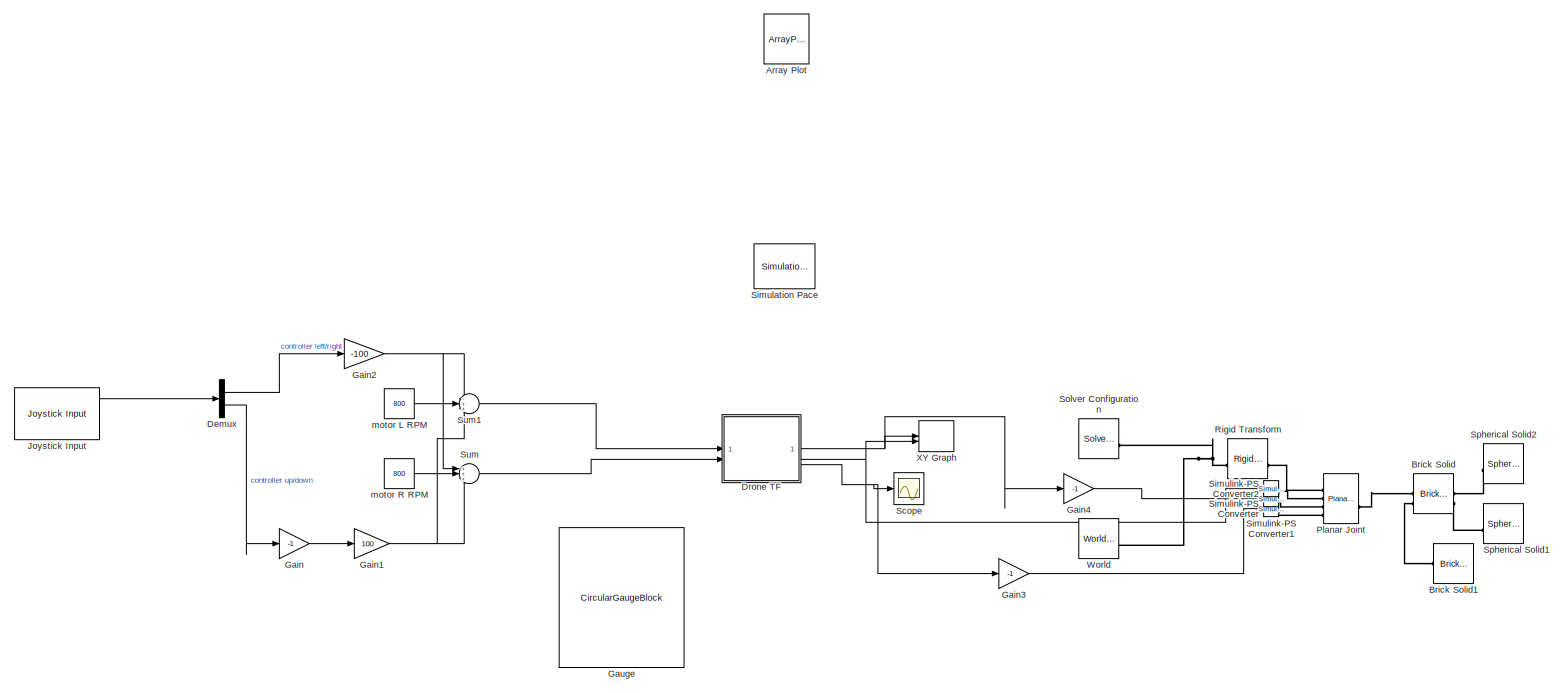
[diagram: root canvas - part 1/1, most of the canvas]
MODEL slx_05ce6a89388a
KIND model
CONFIG AbsTol = auto
CONFIG EnableMultiTasking = off
CONFIG FixedStep = 0.05
CONFIG MaxStep = auto
CONFIG MinStep = auto
CONFIG RelTol = 1e-3
CONFIG SampleTimeConstraint = Unconstrained
CONFIG SolverName = FixedStepAuto
CONFIG StartTime = 0.0
CONFIG StopTime = 100
BLOCK [ArrayPlot] Array Plot
  DefaultConfigurationName = dsp.scopes.ArrayPlotBlockSpecification
  GraphicalSettings = {"Style":{"BackgroundColor":[0.12941176470588237,0.12941176470588237,0.12941176470588237],"AxesColor":[0.07058823529411765,0.07058823529411765,0.07058823529411765],"LabelsColor":[0.8509803921568627,0.8509803921568627,0.8509803921568627],"PreserveColors":false,"Visible":[true],"LineStyle":["-"],"LineWidth":[1.5],"BarWidth":[0.9],"LineColor":[[1,0.9098039215686274,0.39215686274509803]],"LineFaceAlph...<+604ch>
  IOType = viewer
  IsFloating = on
  ScopeFrameLocation = window
  WasSavedAsWebScope = on
  WindowPosition = [560.000000,290.000000,800.000000,500.000000,]
BLOCK [Reference] Brick Solid  REF=sm_lib/Body Elements/Brick Solid
  NameLocation = top
  SourceBlock = sm_lib/Body Elements/Brick Solid
  SourceType = Brick Solid
BLOCK [Reference] Brick Solid1  REF=sm_lib/Body Elements/Brick Solid
  NameLocation = top
  SourceBlock = sm_lib/Body Elements/Brick Solid
  SourceType = Brick Solid
BLOCK [Demux] Demux
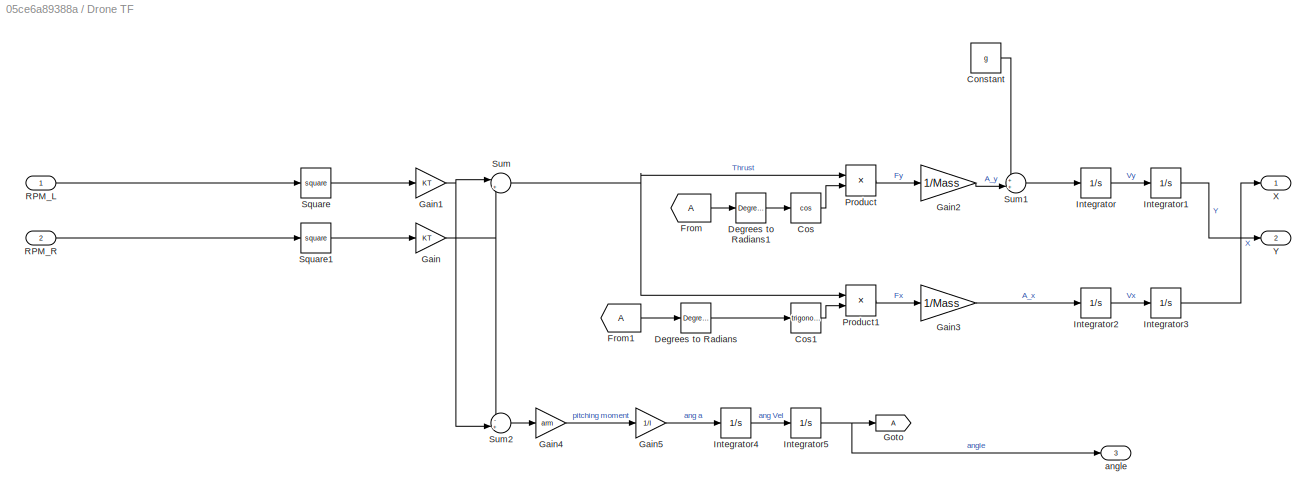
BLOCK [SubSystem] Drone TF
BLOCK [Constant] Drone TF/Constant
  Value = g
BLOCK [Trigonometry] Drone TF/Cos
  Operator = cos
BLOCK [Trigonometry] Drone TF/Cos1
BLOCK [Reference] Drone TF/Degrees to Radians  REF=simulink_extras/Transformations/Degrees to
Radians
  SourceBlock = simulink_extras/Transformations/Degrees to\nRadians
  SourceType = DegreesToRadians
BLOCK [Reference] Drone TF/Degrees to Radians1  REF=simulink_extras/Transformations/Degrees to
Radians
  SourceBlock = simulink_extras/Transformations/Degrees to\nRadians
  SourceType = DegreesToRadians
BLOCK [From] Drone TF/From
BLOCK [From] Drone TF/From1
BLOCK [Gain] Drone TF/Gain
  Gain = KT
BLOCK [Gain] Drone TF/Gain1
  Gain = KT
BLOCK [Gain] Drone TF/Gain2
  Gain = 1/Mass
BLOCK [Gain] Drone TF/Gain3
  Gain = 1/Mass
BLOCK [Gain] Drone TF/Gain4
  Gain = arm
BLOCK [Gain] Drone TF/Gain5
  Gain = 1/I
BLOCK [Goto] Drone TF/Goto
BLOCK [Integrator] Drone TF/Integrator
BLOCK [Integrator] Drone TF/Integrator1
BLOCK [Integrator] Drone TF/Integrator2
BLOCK [Integrator] Drone TF/Integrator3
BLOCK [Integrator] Drone TF/Integrator4
BLOCK [Integrator] Drone TF/Integrator5
BLOCK [Product] Drone TF/Product
BLOCK [Product] Drone TF/Product1
BLOCK [Inport] Drone TF/RPM_L
BLOCK [Inport] Drone TF/RPM_R
  Port = 2
BLOCK [Math] Drone TF/Square
  Operator = square
BLOCK [Math] Drone TF/Square1
  Operator = square
BLOCK [Sum] Drone TF/Sum
  Inputs = |++
BLOCK [Sum] Drone TF/Sum1
  Inputs = ++|
BLOCK [Sum] Drone TF/Sum2
  Inputs = -+|
BLOCK [Outport] Drone TF/X
BLOCK [Outport] Drone TF/Y
  Port = 2
BLOCK [Outport] Drone TF/angle
  Port = 3
BLOCK [Gain] Gain
  Gain = -1
BLOCK [Gain] Gain1
  Gain = 100
BLOCK [Gain] Gain2
  Gain = -100
BLOCK [Gain] Gain3
  Gain = -1
BLOCK [Gain] Gain4
  Gain = -1
BLOCK [CircularGaugeBlock] Gauge
  ScaleMax = 135
  ScaleMin = -135
BLOCK [Reference] Joystick Input  REF=vrlib/Joystick Input
  SourceBlock = vrlib/Joystick Input
  SourceType = Joystick Input
BLOCK [Reference] Planar Joint  REF=sm_lib/Joints/Planar Joint
  SourceBlock = sm_lib/Joints/Planar Joint
  SourceType = Planar Joint
BLOCK [Reference] Rigid Transform  REF=sm_lib/Frames and
Transforms/Rigid
Transform
  SourceBlock = sm_lib/Frames and\nTransforms/Rigid\nTransform
  SourceType = Rigid\nTransform
BLOCK [Scope] Scope
  Floating = off
  NumInputPorts = 1
  ScopeSpecificationString = Simulink.scopes.TimeScopeBlockCfg('CurrentConfiguration', extmgr.ConfigurationSet(extmgr.Configuration('Core','General UI',true),extmgr.Configuration('Core','Source UI',true),extmgr.Configuration('Sources','WiredSimulink',true),extmgr.Configuration('Visuals','Time Domain',true,'SerializedDisplays',{struct('MinYLimReal','-1.3902','MaxYLimReal','0.15447','YLabelReal','','MinYLimMag','0.00000','MaxYL...<+1494ch>
BLOCK [Reference] Simulation Pace  REF=aerolibanimutils/Simulation Pace
  AttributesFormatString = %<SleepMode>\n%<SimulationPace> sec/sec
  SourceBlock = aerolibanimutils/Simulation Pace
  SourceType = Simulation Pace
BLOCK [Reference] Simulink-PS Converter  REF=nesl_utility/Simulink-PS
Converter
  SourceBlock = nesl_utility/Simulink-PS\nConverter
  SourceType = Simulink-PS\nConverter
BLOCK [Reference] Simulink-PS Converter1  REF=nesl_utility/Simulink-PS
Converter
  SourceBlock = nesl_utility/Simulink-PS\nConverter
  SourceType = Simulink-PS\nConverter
BLOCK [Reference] Simulink-PS Converter2  REF=nesl_utility/Simulink-PS
Converter
  SourceBlock = nesl_utility/Simulink-PS\nConverter
  SourceType = Simulink-PS\nConverter
BLOCK [Reference] Solver Configuration  REF=nesl_utility/Solver
Configuration
  SourceBlock = nesl_utility/Solver\nConfiguration
  SourceType = Solver\nConfiguration
BLOCK [Reference] Spherical Solid1  REF=sm_lib/Body Elements/Spherical Solid
  NameLocation = top
  SourceBlock = sm_lib/Body Elements/Spherical Solid
  SourceType = Spherical Solid
BLOCK [Reference] Spherical Solid2  REF=sm_lib/Body Elements/Spherical Solid
  NameLocation = top
  SourceBlock = sm_lib/Body Elements/Spherical Solid
  SourceType = Spherical Solid
BLOCK [Sum] Sum
  Inputs = +++
BLOCK [Sum] Sum1
  Inputs = -++
BLOCK [Reference] World  REF=sm_lib/Frames and
Transforms/World Frame
  SourceBlock = sm_lib/Frames and\nTransforms/World Frame
  SourceType = World Frame
BLOCK [Record] XY Graph
  CompatibilityTag = XY
  FileSettingsInternal = {"entries":[{"content":{"excelSettings":{"content":{},"type":"Streamout.ExcelSettings"}},"type":"Streamout.FileSettingStorage","uuid":""}],"packageUris":["http:\/\/schema.mathworks.com\/mf0\/streamout_blocks\/R2020a"],"version":"1.0"}
  Layout = [1 1]
  SignalsInternal = {"entries":[{"content":{"signals":[{"content":{"blockPath":[],"dimensions":[1],"domain":"","lineColor":"#a2142f","plots":[ 1 ],"port":1,"sid":[""],"signalID":1,"signalName":"Drone TF:1"},"type":"RecordBlkView.Signal","uuid":""},{"content":{"blockPath":[],"dimensions":[1],"domain":"","lineColor":"#139fff","plots":[ 1 ],"port":2,"sid":[""],"signalID":2,"signalName":"Drone TF:2"},"type":"RecordBlkVie...<+166ch>
  VisualizationBindings = {"xyplotplugin":{"info":[{"series":[{"bindingParametersList":[{"parameter":"X-Axis","signalID":1,"signalName":"Drone TF:1"},{"parameter":"Y-Axis","signalID":2,"signalName":"Drone TF:2"}],"seriesID":0}],"subplotID":1}]}}
BLOCK [Constant] motor L RPM
  Value = 800
BLOCK [Constant] motor R RPM
  Value = 800
LINE Demux:1 -> Gain2:1
LINE Demux:2 -> Gain:1
LINE Drone TF/Constant:1 -> Drone TF/Sum1:1
LINE Drone TF/Cos1:1 -> Drone TF/Product1:2
LINE Drone TF/Cos:1 -> Drone TF/Product:2
LINE Drone TF/Degrees to Radians1:1 -> Drone TF/Cos:1
LINE Drone TF/Degrees to Radians:1 -> Drone TF/Cos1:1
LINE Drone TF/From1:1 -> Drone TF/Degrees to Radians:1
LINE Drone TF/From:1 -> Drone TF/Degrees to Radians1:1
NET Drone TF/Gain1:1 -> Drone TF/Sum2:2, Drone TF/Sum:1
LINE Drone TF/Gain2:1 -> Drone TF/Sum1:2
LINE Drone TF/Gain3:1 -> Drone TF/Integrator2:1
LINE Drone TF/Gain4:1 -> Drone TF/Gain5:1
LINE Drone TF/Gain5:1 -> Drone TF/Integrator4:1
NET Drone TF/Gain:1 -> Drone TF/Sum2:1, Drone TF/Sum:2
LINE Drone TF/Integrator1:1 -> Drone TF/Y:1
LINE Drone TF/Integrator2:1 -> Drone TF/Integrator3:1
LINE Drone TF/Integrator3:1 -> Drone TF/X:1
LINE Drone TF/Integrator4:1 -> Drone TF/Integrator5:1
NET Drone TF/Integrator5:1 -> Drone TF/Goto:1, Drone TF/angle:1
LINE Drone TF/Integrator:1 -> Drone TF/Integrator1:1
LINE Drone TF/Product1:1 -> Drone TF/Gain3:1
LINE Drone TF/Product:1 -> Drone TF/Gain2:1
LINE Drone TF/RPM_L:1 -> Drone TF/Square:1
LINE Drone TF/RPM_R:1 -> Drone TF/Square1:1
LINE Drone TF/Square1:1 -> Drone TF/Gain:1
LINE Drone TF/Square:1 -> Drone TF/Gain1:1
LINE Drone TF/Sum1:1 -> Drone TF/Integrator:1
LINE Drone TF/Sum2:1 -> Drone TF/Gain4:1
NET Drone TF/Sum:1 -> Drone TF/Product1:1, Drone TF/Product:1
NET Drone TF:1 -> Gain4:1, XY Graph:1
NET Drone TF:2 -> Simulink-PS Converter2:1, XY Graph:2
NET Drone TF:3 -> Gain3:1, Scope:1
NET Gain1:1 -> Sum1:3, Sum:3
NET Gain2:1 -> Sum1:1, Sum:1
LINE Gain3:1 -> Simulink-PS Converter:1
LINE Gain4:1 -> Simulink-PS Converter1:1
LINE Gain:1 -> Gain1:1
LINE Joystick Input:1 -> Demux:1
LINE Sum1:1 -> Drone TF:1
LINE Sum:1 -> Drone TF:2
LINE motor L RPM:1 -> Sum1:2
LINE motor R RPM:1 -> Sum:2
PLINE Brick Solid1:RConn1 -- Brick Solid:RConn2
PLINE Brick Solid:LConn1 -- Spherical Solid2:RConn1
PLINE Brick Solid:LConn2 -- Spherical Solid1:RConn1
PLINE Brick Solid:RConn1 -- Planar Joint:RConn1
PLINE Planar Joint:LConn1 -- Rigid Transform:RConn1
PLINE Planar Joint:LConn2 -- Simulink-PS Converter2:RConn1
PLINE Planar Joint:LConn3 -- Simulink-PS Converter1:RConn1
PLINE Planar Joint:LConn4 -- Simulink-PS Converter:RConn1
PNET net1: Rigid Transform:LConn1 -- Solver Configuration:RConn1 -- World:RConn1
note: NET lines group one-source signal fan-out (src -> all destinations, sorted); 1:1 wires keep LINE; PNET lines group multi-terminal physical nets as a canonical sorted terminal list (undirected conserving connections); 2-terminal nets keep the pairwise PLINE form
